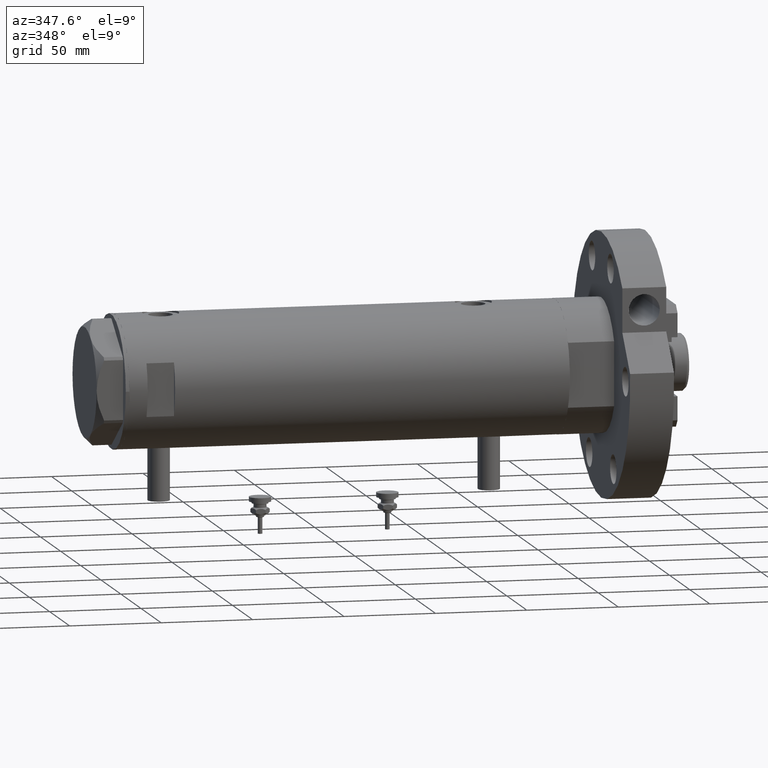
[diagram: clean part render]
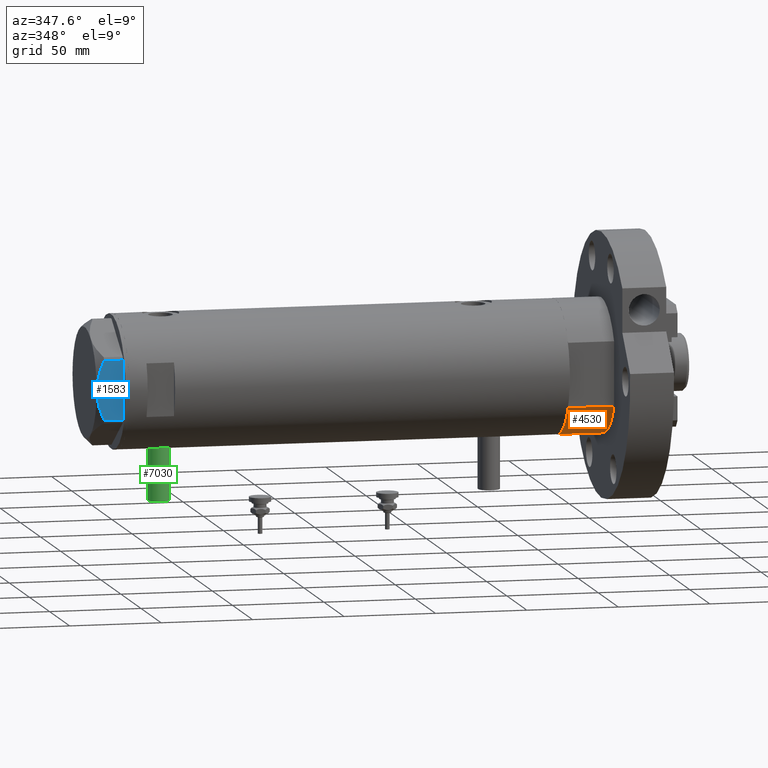
[diagram: same view with three faces highlighted in distinct colors, each labeled with its STEP entity id]
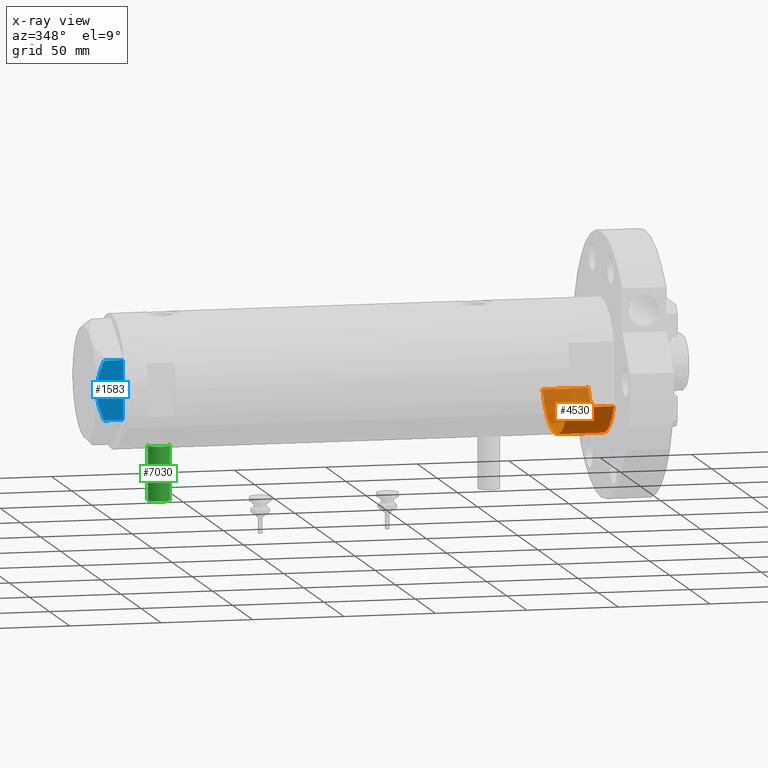
[diagram: x-ray of the same camera — body ghosted, the three highlighted faces saturated]
A machine part, auxiliary view with three faces highlighted in distinct colors.
The next image is the same camera in x-ray (body ghosted, the three faces saturated) — at least one of them is partly hidden behind the body in this view.
Their STEP definitions:

[orange] entity #4530 — the highlighted cylindrical surface (partial cylindrical patch) has radius 36.5 mm, axis along (-1, -0, 0).
#19 = DIRECTION ( 'NONE',  ( 0.000000000000000000, 0.000000000000000000, 1.000000000000000000 ) ) ;
#365 = LINE ( 'NONE', #4786, #7646 ) ;
#651 = CYLINDRICAL_SURFACE ( 'NONE', #7066, 36.50000000000000000 ) ;
#1079 = EDGE_CURVE ( 'NONE', #6415, #5410, #2188, .T. ) ;
#1178 = ORIENTED_EDGE ( 'NONE', *, *, #6617, .F. ) ;
#1248 = CARTESIAN_POINT ( 'NONE',  ( 0.000000000000000000, 0.000000000000000000, 25.19999999999999929 ) ) ;
#1362 = ORIENTED_EDGE ( 'NONE', *, *, #6879, .F. ) ;
#1837 = DIRECTION ( 'NONE',  ( 1.000000000000000000, 0.000000000000000000, 0.000000000000000000 ) ) ;
#2188 = CIRCLE ( 'NONE', #3801, 36.50000000000000000 ) ;
#2275 = AXIS2_PLACEMENT_3D ( 'NONE', #1248, #3823, #1837 ) ;
#2437 = VERTEX_POINT ( 'NONE', #5459 ) ;
#2528 = VECTOR ( 'NONE', #4291, 1000.000000000000000 ) ;
#2947 = LINE ( 'NONE', #3570, #2528 ) ;
#3041 = DIRECTION ( 'NONE',  ( 1.000000000000000000, 0.000000000000000000, 0.000000000000000000 ) ) ;
#3570 = CARTESIAN_POINT ( 'NONE',  ( 17.55704986607943141, 32.00000000000000000, 0.000000000000000000 ) ) ;
#3801 = AXIS2_PLACEMENT_3D ( 'NONE', #8303, #19, #3041 ) ;
#3823 = DIRECTION ( 'NONE',  ( 0.000000000000000000, 0.000000000000000000, 1.000000000000000000 ) ) ;
#4111 = CARTESIAN_POINT ( 'NONE',  ( 17.55704986607943496, 32.00000000000000000, 0.000000000000000000 ) ) ;
#4291 = DIRECTION ( 'NONE',  ( -0.000000000000000000, -0.000000000000000000, 1.000000000000000000 ) ) ;
#4483 = DIRECTION ( 'NONE',  ( -1.000000000000000000, 0.000000000000000000, 0.000000000000000000 ) ) ;
#4530 = ADVANCED_FACE ( 'NONE', ( #5787 ), #651, .T. ) ;
#4690 = ORIENTED_EDGE ( 'NONE', *, *, #1079, .T. ) ;
#4786 = CARTESIAN_POINT ( 'NONE',  ( 17.55704986607943141, -32.00000000000000000, 0.000000000000000000 ) ) ;
#4840 = CIRCLE ( 'NONE', #2275, 36.50000000000000000 ) ;
#5069 = CARTESIAN_POINT ( 'NONE',  ( 17.55704986607943496, 32.00000000000000000, 25.19999999999999929 ) ) ;
#5188 = ORIENTED_EDGE ( 'NONE', *, *, #6531, .T. ) ;
#5410 = VERTEX_POINT ( 'NONE', #4111 ) ;
#5459 = CARTESIAN_POINT ( 'NONE',  ( 17.55704986607943496, -32.00000000000000000, 25.19999999999999929 ) ) ;
#5472 = VERTEX_POINT ( 'NONE', #5069 ) ;
#5741 = DIRECTION ( 'NONE',  ( -0.000000000000000000, -0.000000000000000000, -1.000000000000000000 ) ) ;
#5787 = FACE_OUTER_BOUND ( 'NONE', #6781, .T. ) ;
#6017 = CARTESIAN_POINT ( 'NONE',  ( 17.55704986607943141, -32.00000000000000000, 0.000000000000000000 ) ) ;
#6378 = CARTESIAN_POINT ( 'NONE',  ( 0.000000000000000000, 0.000000000000000000, 25.19999999999999929 ) ) ;
#6415 = VERTEX_POINT ( 'NONE', #6017 ) ;
#6531 = EDGE_CURVE ( 'NONE', #5410, #5472, #2947, .T. ) ;
#6617 = EDGE_CURVE ( 'NONE', #2437, #5472, #4840, .T. ) ;
#6781 = EDGE_LOOP ( 'NONE', ( #1178, #1362, #4690, #5188 ) ) ;
#6879 = EDGE_CURVE ( 'NONE', #6415, #2437, #365, .T. ) ;
#7066 = AXIS2_PLACEMENT_3D ( 'NONE', #6378, #5741, #4483 ) ;
#7349 = DIRECTION ( 'NONE',  ( -0.000000000000000000, -0.000000000000000000, 1.000000000000000000 ) ) ;
#7646 = VECTOR ( 'NONE', #7349, 1000.000000000000000 ) ;
#8303 = CARTESIAN_POINT ( 'NONE',  ( 0.000000000000000000, 0.000000000000000000, 0.000000000000000000 ) ) ;

[blue] entity #1583 — the highlighted planar face has unit normal (-0, 1, 0).
#296 = CARTESIAN_POINT ( 'NONE',  ( -30.00000000000000000, -16.20050807568876294, 10.40518423703603901 ) ) ;
#431 = ORIENTED_EDGE ( 'NONE', *, *, #3077, .T. ) ;
#457 = CARTESIAN_POINT ( 'NONE',  ( -29.99999999999999645, -9.671229349009038856, 13.00645148086949554 ) ) ;
#672 = CARTESIAN_POINT ( 'NONE',  ( -30.00000000000000000, 11.66725319103952607, 12.31690447555093293 ) ) ;
#676 = CARTESIAN_POINT ( 'NONE',  ( -30.00000000000000000, 17.32050807568877460, 14.50000000000000000 ) ) ;
#899 = ORIENTED_EDGE ( 'NONE', *, *, #7970, .F. ) ;
#919 = CARTESIAN_POINT ( 'NONE',  ( -29.99999999999999289, -15.56759648729806322, 10.70591879357992227 ) ) ;
#962 = EDGE_CURVE ( 'NONE', #2627, #7961, #5405, .T. ) ;
#1080 = CARTESIAN_POINT ( 'NONE',  ( -29.99999999999999289, -5.607365453019637513, 14.01139032121647965 ) ) ;
#1190 = VERTEX_POINT ( 'NONE', #2738 ) ;
#1198 = LINE ( 'NONE', #5708, #1929 ) ;
#1343 = PLANE ( 'NONE',  #3412 ) ;
#1583 = ADVANCED_FACE ( 'NONE', ( #2693 ), #1343, .F. ) ;
#1607 = EDGE_LOOP ( 'NONE', ( #899, #5396, #6524, #431, #5502 ) ) ;
#1821 = B_SPLINE_CURVE_WITH_KNOTS ( 'NONE', 3,
 ( #8074, #8115, #2983, #2345, #7476, #1080, #3657, #457, #2181, #4757, #7317, #4129, #919, #296 ),
 .UNSPECIFIED., .F., .F.,
 ( 4, 2, 2, 2, 2, 2, 4 ),
 ( 0.06183748343640969869, 0.06393495742991751885, 0.06603243142342535288, 0.07022737941044099319, 0.07442232739745664738, 0.07651980139096448141, 0.07861727538447230157 ),
 .UNSPECIFIED. ) ;
#1879 = CARTESIAN_POINT ( 'NONE',  ( -30.00000000000000000, 16.20050807568875584, 10.40518423703603546 ) ) ;
#1929 = VECTOR ( 'NONE', #8274, 1000.000000000000000 ) ;
#1971 = CARTESIAN_POINT ( 'NONE',  ( -30.00000000000000711, 8.981118657900116986, 13.19130745470829247 ) ) ;
#2181 = CARTESIAN_POINT ( 'NONE',  ( -30.00000000000000000, -11.00230860792644982, 12.56933207488871673 ) ) ;
#2311 = B_SPLINE_CURVE_WITH_KNOTS ( 'NONE', 3,
 ( #1879, #5130, #4461, #672, #7010, #6399, #1971, #3825, #3194, #5638 ),
 .UNSPECIFIED., .F., .F.,
 ( 4, 2, 2, 2, 4 ),
 ( 0.04501738275285960267, 0.04922240792374713014, 0.05132492050919089388, 0.05342743309463465068, 0.06183748343640969869 ),
 .UNSPECIFIED. ) ;
#2345 = CARTESIAN_POINT ( 'NONE',  ( -29.99999999999999645, -2.827567415490778835, 14.37523681947611109 ) ) ;
#2484 = VECTOR ( 'NONE', #6252, 1000.000000000000000 ) ;
#2627 = VERTEX_POINT ( 'NONE', #5072 ) ;
#2693 = FACE_OUTER_BOUND ( 'NONE', #1607, .T. ) ;
#2718 = EDGE_CURVE ( 'NONE', #7961, #7069, #1198, .T. ) ;
#2738 = CARTESIAN_POINT ( 'NONE',  ( -30.00000000000000000, 0.000000000000000000, 14.50000000000000000 ) ) ;
#2983 = CARTESIAN_POINT ( 'NONE',  ( -30.00000000000000355, -1.418661615092686290, 14.47469700449902952 ) ) ;
#3077 = EDGE_CURVE ( 'NONE', #7069, #6506, #6866, .T. ) ;
#3194 = CARTESIAN_POINT ( 'NONE',  ( -30.00000000000000711, 2.830925467268496476, 14.50000000000000533 ) ) ;
#3412 = AXIS2_PLACEMENT_3D ( 'NONE', #676, #7867, #6402 ) ;
#3587 = DIRECTION ( 'NONE',  ( 0.000000000000000000, 0.000000000000000000, -1.000000000000000000 ) ) ;
#3657 = CARTESIAN_POINT ( 'NONE',  ( -30.00000000000000000, -6.973771051792319042, 13.72753822183687511 ) ) ;
#3825 = CARTESIAN_POINT ( 'NONE',  ( -30.00000000000000000, 5.593935073701701732, 14.09487059093540573 ) ) ;
#4129 = CARTESIAN_POINT ( 'NONE',  ( -29.99999999999999289, -14.92797448277034533, 10.99622797424084553 ) ) ;
#4461 = CARTESIAN_POINT ( 'NONE',  ( -30.00000000000000355, 13.64854889245356695, 11.56384586935411996 ) ) ;
#4757 = CARTESIAN_POINT ( 'NONE',  ( -29.99999999999999645, -12.97715359595204809, 11.81918444541430624 ) ) ;
#5072 = CARTESIAN_POINT ( 'NONE',  ( -30.00000000000000000, 16.20050807568875584, 10.40518423703603546 ) ) ;
#5130 = CARTESIAN_POINT ( 'NONE',  ( -30.00000000000001421, 14.93680064777130312, 11.00564802993687508 ) ) ;
#5396 = ORIENTED_EDGE ( 'NONE', *, *, #962, .T. ) ;
#5405 = LINE ( 'NONE', #5532, #5966 ) ;
#5502 = ORIENTED_EDGE ( 'NONE', *, *, #6542, .F. ) ;
#5532 = CARTESIAN_POINT ( 'NONE',  ( -30.00000000000000000, 16.20050807568875584, 14.50000000000000000 ) ) ;
#5638 = CARTESIAN_POINT ( 'NONE',  ( -30.00000000000000000, 0.000000000000000000, 14.50000000000000000 ) ) ;
#5708 = CARTESIAN_POINT ( 'NONE',  ( -30.00000000000000000, 17.32050807568877460, 0.000000000000000000 ) ) ;
#5877 = CARTESIAN_POINT ( 'NONE',  ( -30.00000000000000000, -16.20050807568876294, 0.000000000000000000 ) ) ;
#5966 = VECTOR ( 'NONE', #3587, 1000.000000000000000 ) ;
#6227 = CARTESIAN_POINT ( 'NONE',  ( -30.00000000000000000, -16.20050807568876294, 10.40518423703603901 ) ) ;
#6252 = DIRECTION ( 'NONE',  ( 0.000000000000000000, 0.000000000000000000, 1.000000000000000000 ) ) ;
#6399 = CARTESIAN_POINT ( 'NONE',  ( -30.00000000000000000, 9.655259153795977767, 12.99093232113973606 ) ) ;
#6402 = DIRECTION ( 'NONE',  ( -0.000000000000000000, 0.000000000000000000, -1.000000000000000000 ) ) ;
#6506 = VERTEX_POINT ( 'NONE', #6227 ) ;
#6524 = ORIENTED_EDGE ( 'NONE', *, *, #2718, .T. ) ;
#6542 = EDGE_CURVE ( 'NONE', #1190, #6506, #1821, .T. ) ;
#6866 = LINE ( 'NONE', #8093, #2484 ) ;
#6930 = CARTESIAN_POINT ( 'NONE',  ( -30.00000000000000000, 16.20050807568875584, 0.000000000000000000 ) ) ;
#7010 = CARTESIAN_POINT ( 'NONE',  ( -30.00000000000000355, 10.99748736931232607, 12.55407623651775495 ) ) ;
#7069 = VERTEX_POINT ( 'NONE', #5877 ) ;
#7317 = CARTESIAN_POINT ( 'NONE',  ( -29.99999999999999289, -13.63320717147166405, 11.55272916346384804 ) ) ;
#7476 = CARTESIAN_POINT ( 'NONE',  ( -30.00000000000000000, -3.526431665117130798, 14.30125973663612626 ) ) ;
#7867 = DIRECTION ( 'NONE',  ( 1.000000000000000000, 0.000000000000000000, -0.000000000000000000 ) ) ;
#7961 = VERTEX_POINT ( 'NONE', #6930 ) ;
#7970 = EDGE_CURVE ( 'NONE', #2627, #1190, #2311, .T. ) ;
#8074 = CARTESIAN_POINT ( 'NONE',  ( -30.00000000000000000, 0.000000000000000000, 14.50000000000000000 ) ) ;
#8093 = CARTESIAN_POINT ( 'NONE',  ( -30.00000000000000000, -16.20050807568876294, 14.50000000000000000 ) ) ;
#8115 = CARTESIAN_POINT ( 'NONE',  ( -30.00000000000000000, -0.7060353153488233557, 14.49999999999999822 ) ) ;
#8274 = DIRECTION ( 'NONE',  ( 0.000000000000000000, -1.000000000000000000, 0.000000000000000000 ) ) ;

[green] entity #7030 — the highlighted cylindrical surface (edge-blend (fillet) strip) has radius 6 mm, axis along (0, 0, 1).
#65 = ORIENTED_EDGE ( 'NONE', *, *, #1734, .T. ) ;
#201 = CARTESIAN_POINT ( 'NONE',  ( -65.00000000000000000, 0.000000000000000000, 90.40000000000001990 ) ) ;
#879 = EDGE_CURVE ( 'NONE', #1952, #5359, #6384, .T. ) ;
#914 = DIRECTION ( 'NONE',  ( 1.000000000000000000, -0.000000000000000000, -0.000000000000000000 ) ) ;
#1072 = DIRECTION ( 'NONE',  ( 0.000000000000000000, 0.000000000000000000, -1.000000000000000000 ) ) ;
#1164 = DIRECTION ( 'NONE',  ( -1.000000000000000000, 0.000000000000000000, 0.000000000000000000 ) ) ;
#1252 = CARTESIAN_POINT ( 'NONE',  ( -35.29999999999999716, 7.347880794884101001E-16, 102.4000000000000057 ) ) ;
#1612 = DIRECTION ( 'NONE',  ( -1.000000000000000000, 0.000000000000000000, 0.000000000000000000 ) ) ;
#1734 = EDGE_CURVE ( 'NONE', #5356, #1952, #2770, .T. ) ;
#1870 = CYLINDRICAL_SURFACE ( 'NONE', #7358, 5.999999999999991118 ) ;
#1952 = VERTEX_POINT ( 'NONE', #5547 ) ;
#2520 = CARTESIAN_POINT ( 'NONE',  ( -65.00000000000000000, 0.000000000000000000, 96.40000000000001990 ) ) ;
#2743 = AXIS2_PLACEMENT_3D ( 'NONE', #5444, #1612, #5572 ) ;
#2770 = LINE ( 'NONE', #6681, #4082 ) ;
#3490 = EDGE_CURVE ( 'NONE', #5356, #7736, #5178, .T. ) ;
#3931 = ORIENTED_EDGE ( 'NONE', *, *, #879, .T. ) ;
#4082 = VECTOR ( 'NONE', #914, 1000.000000000000000 ) ;
#4367 = CARTESIAN_POINT ( 'NONE',  ( -65.00000000000000000, 0.000000000000000000, 96.40000000000001990 ) ) ;
#5004 = DIRECTION ( 'NONE',  ( 0.000000000000000000, 0.000000000000000000, 1.000000000000000000 ) ) ;
#5178 = CIRCLE ( 'NONE', #7059, 5.999999999999991118 ) ;
#5227 = CARTESIAN_POINT ( 'NONE',  ( -65.00000000000000000, 7.347880794884101001E-16, 102.4000000000000057 ) ) ;
#5356 = VERTEX_POINT ( 'NONE', #201 ) ;
#5359 = VERTEX_POINT ( 'NONE', #1252 ) ;
#5444 = CARTESIAN_POINT ( 'NONE',  ( -35.29999999999999716, 0.000000000000000000, 96.40000000000001990 ) ) ;
#5487 = VECTOR ( 'NONE', #8086, 1000.000000000000000 ) ;
#5547 = CARTESIAN_POINT ( 'NONE',  ( -35.29999999999999716, 0.000000000000000000, 90.40000000000001990 ) ) ;
#5567 = CARTESIAN_POINT ( 'NONE',  ( -65.00000000000000000, 7.347880794884104945E-16, 102.4000000000000057 ) ) ;
#5572 = DIRECTION ( 'NONE',  ( 0.000000000000000000, 0.000000000000000000, 1.000000000000000000 ) ) ;
#6116 = ORIENTED_EDGE ( 'NONE', *, *, #7400, .F. ) ;
#6384 = CIRCLE ( 'NONE', #2743, 5.999999999999991118 ) ;
#6681 = CARTESIAN_POINT ( 'NONE',  ( -65.00000000000000000, 0.000000000000000000, 90.40000000000001990 ) ) ;
#6723 = ORIENTED_EDGE ( 'NONE', *, *, #3490, .F. ) ;
#6858 = LINE ( 'NONE', #5567, #5487 ) ;
#6917 = FACE_OUTER_BOUND ( 'NONE', #7625, .T. ) ;
#7030 = ADVANCED_FACE ( 'NONE', ( #6917 ), #1870, .T. ) ;
#7059 = AXIS2_PLACEMENT_3D ( 'NONE', #2520, #1164, #5004 ) ;
#7358 = AXIS2_PLACEMENT_3D ( 'NONE', #4367, #8149, #1072 ) ;
#7400 = EDGE_CURVE ( 'NONE', #7736, #5359, #6858, .T. ) ;
#7625 = EDGE_LOOP ( 'NONE', ( #6116, #6723, #65, #3931 ) ) ;
#7736 = VERTEX_POINT ( 'NONE', #5227 ) ;
#8086 = DIRECTION ( 'NONE',  ( 1.000000000000000000, -0.000000000000000000, -0.000000000000000000 ) ) ;
#8149 = DIRECTION ( 'NONE',  ( 1.000000000000000000, -0.000000000000000000, -0.000000000000000000 ) ) ;